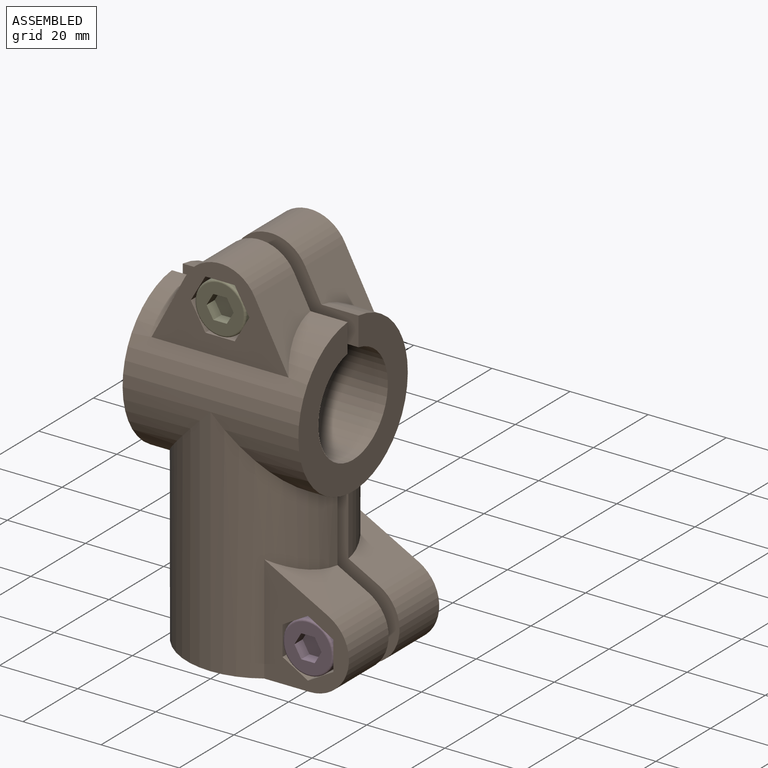
[diagram: assembled view]
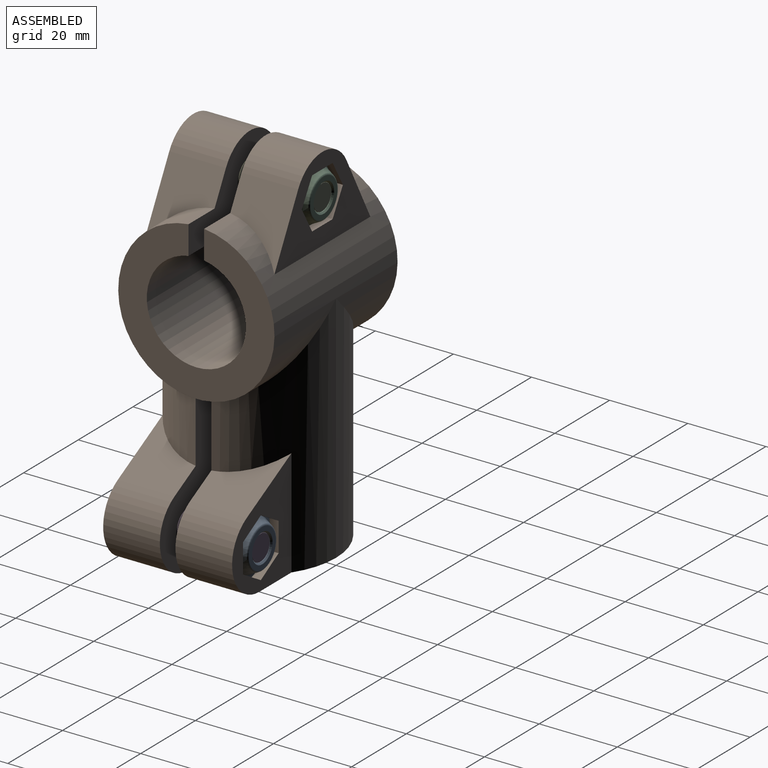
[diagram: assembled view, second angle]
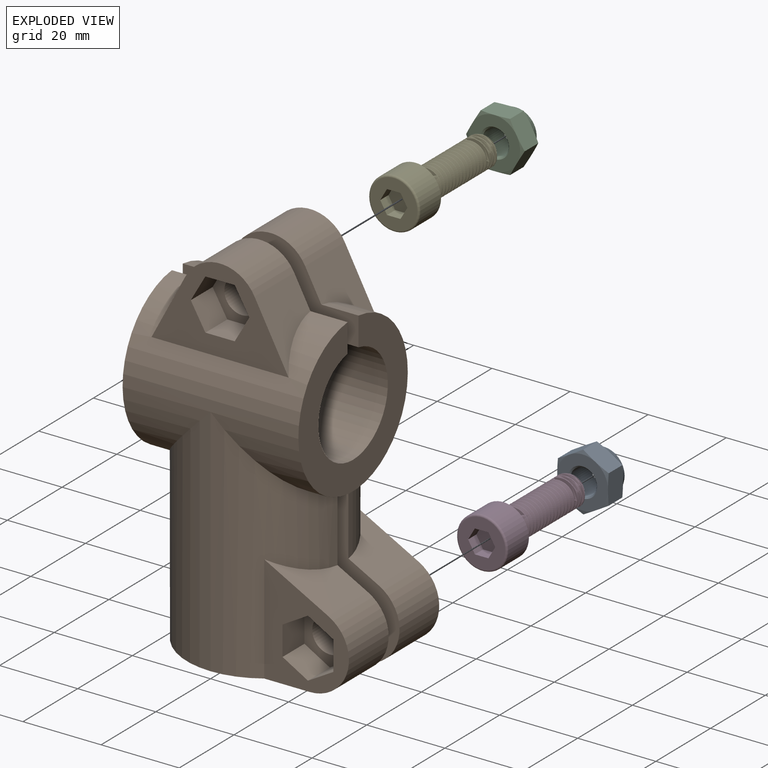
[diagram: exploded view]
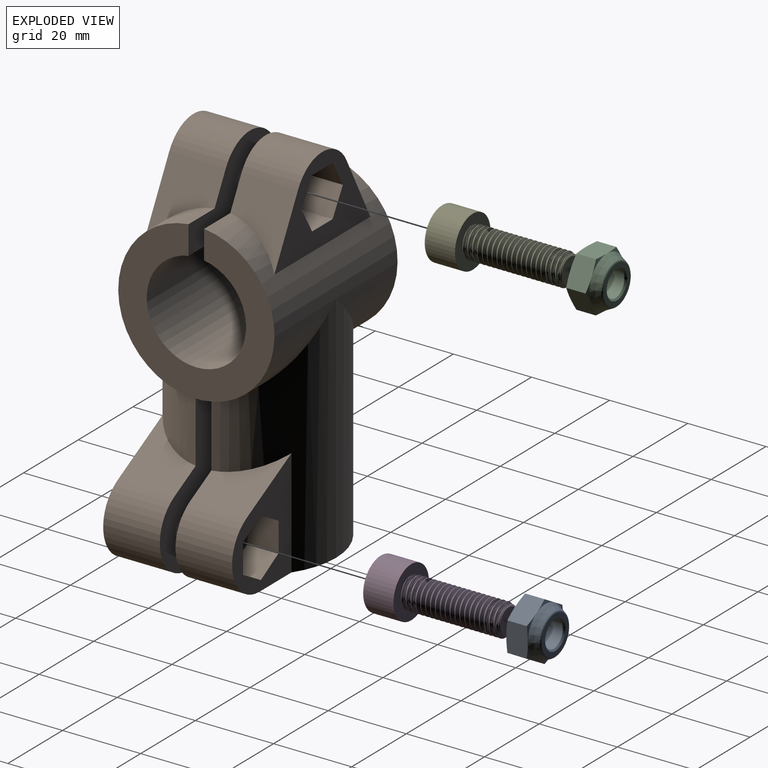
[diagram: exploded view, second angle]
ASSEMBLY  parts=5 mates=4
PART A: 25 faces, bbox 15.6x8.6x15.6 mm
  f0: plane 7.06x6.06mm, normal (-0.5,0,0.87), area 39.9mm2, adj f1,f5,f9,f10,f21,f22
  f1: plane 7.06x6.06mm, normal (0.5,0,0.87), area 39.9mm2, adj f0,f2,f10,f11,f20,f21
  f2: plane 8.07x6.06mm, normal (1,0,0), area 39.9mm2, adj f1,f3,f11,f12,f19,f20
  f3: plane 7.06x6.06mm, normal (0.5,0,-0.87), area 39.9mm2, adj f2,f4,f12,f13,f18,f19
  f4: plane 7.06x6.06mm, normal (-0.5,0,-0.87), area 39.9mm2, adj f3,f5,f13,f14,f17,f18
  f5: plane 8.07x6.06mm, normal (-1,0,0), area 39.9mm2, adj f0,f4,f9,f14,f17,f22
  f6: plane 13x13mm, normal (0,-1,0), area 89.2mm2, adj f17,f18,f19,f20,f21,f22,f24
  f7: plane 9.79x9.79mm, normal (0,1,0), area 31.8mm2, adj f16,f23
  f8: cylinder r=3.32mm len=7.2mm, axis (0,-1,0), area 150.4mm2, adj f23,f24
  f9: cone r=7.51mm half-angle=75deg, axis (0,-1,0), area 3.7mm2, adj f0,f5,f15
  f10: cone r=7.51mm half-angle=75deg, axis (0,-1,0), area 3.7mm2, adj f0,f1,f15
  f11: cone r=7.51mm half-angle=75deg, axis (0,-1,0), area 3.7mm2, adj f1,f2,f15
  f12: cone r=7.51mm half-angle=75deg, axis (0,-1,0), area 3.7mm2, adj f2,f3,f15
  f13: cone r=7.51mm half-angle=75deg, axis (0,-1,0), area 3.7mm2, adj f3,f4,f15
  f14: cone r=7.51mm half-angle=75deg, axis (0,-1,0), area 3.7mm2, adj f4,f5,f15
  f15: cone r=6.5mm half-angle=27.5deg, axis (0,-1,0), area 93.5mm2, adj f9,f10,f11,f12,f13,f14,f16
  f16: torus R=4.9mm, axis (0,-1,0), area 17.6mm2, adj f7,f15
  f17: cone r=6.5mm half-angle=75deg, axis (0,1,0), area 3.7mm2, adj f4,f5,f6
  f18: cone r=6.5mm half-angle=75deg, axis (0,1,0), area 3.7mm2, adj f3,f4,f6
  f19: cone r=6.5mm half-angle=75deg, axis (0,1,0), area 3.7mm2, adj f2,f3,f6
  f20: cone r=6.5mm half-angle=75deg, axis (0,1,0), area 3.7mm2, adj f1,f2,f6
  f21: cone r=6.5mm half-angle=75deg, axis (0,1,0), area 3.7mm2, adj f0,f1,f6
  f22: cone r=6.5mm half-angle=75deg, axis (0,1,0), area 3.7mm2, adj f0,f5,f6
  f23: cone r=3.32mm half-angle=45deg, axis (0,1,0), area 12.5mm2, adj f7,f8
  f24: cone r=3.72mm half-angle=45deg, axis (0,-1,0), area 12.5mm2, adj f6,f8
PART B: 58 faces, bbox 55.5x40x93 mm
  f0: plane 35.08x21.7mm, normal (0,1,0), area 352.7mm2, adj f10,f11,f12,f17,f52,f53,f54,f55
  f1: cylinder r=4.5mm len=9mm, axis (0,-1,0), area 183.8mm2, adj f28,f51
  f2: plane 27.57x21.7mm, normal (0,1,0), area 298.9mm2, adj f15,f16,f20,f21,f45,f46,f47,f48
  f3: cylinder r=4.5mm len=9mm, axis (0,-1,0), area 183.8mm2, adj f26,f44
  f4: cylinder r=4.5mm len=9mm, axis (0,1,0), area 183.8mm2, adj f7,f43
  f5: cylinder r=4.5mm len=9mm, axis (0,1,0), area 183.8mm2, adj f9,f36
  f6: plane 35.08x21.7mm, normal (0,-1,0), area 352.7mm2, adj f17,f22,f23,f24,f37,f38,f39,f40
  f7: plane 45x20.46mm, normal (0,1,0), area 504.2mm2, adj f4,f17,f18,f19,f22,f23,f24,f29
  f8: plane 27.57x21.7mm, normal (0,-1,0), area 298.9mm2, adj f13,f14,f15,f16,f30,f31,f32,f33
  f9: plane 40x20.46mm, normal (0,1,0), area 458.7mm2, adj f5,f13,f14,f15,f16,f25,f27
  f10: plane 16.39x14.5mm, normal (0.88,0,0.47), area 174.6mm2, adj f0,f12,f17,f28
  f11: plane 16.39x14.5mm, normal (-0.88,0,0.47), area 174.6mm2, adj f0,f12,f17,f28
  f12: cylinder r=10mm len=17.66mm, axis (0,1,0), area 313.9mm2, adj f0,f10,f11,f28
  f13: plane 16.4x14.5mm, normal (0.47,0,0.88), area 175mm2, adj f8,f9,f14,f15
  f14: cylinder r=10mm len=18.82mm, axis (0,1,0), area 384.5mm2, adj f8,f9,f13,f16
  f15: cylinder r=20mm len=60mm, axis (0,0,-1), area 4919.6mm2, adj f2,f8,f9,f13,f16,f17,f20,f25
  f16: plane 43x40mm, normal (0,0,-1), area 892.9mm2, adj f2,f8,f9,f14,f15,f21,f26,f27
  f17: cylinder r=20mm len=45mm, axis (-1,0,0), area 2852mm2, adj f0,f6,f7,f10,f11,f15,f18,f19
  f18: plane 40x39.9mm, normal (1,0,0), area 720.7mm2, adj f7,f17,f28,f29
  f19: plane 40x39.9mm, normal (-1,0,0), area 720.7mm2, adj f7,f17,f28,f29
  f20: plane 16.4x14.5mm, normal (0.47,0,0.88), area 175mm2, adj f2,f15,f21,f26
  f21: cylinder r=10mm len=18.82mm, axis (0,1,0), area 384.5mm2, adj f2,f16,f20,f26
  f22: plane 16.39x14.5mm, normal (0.88,0,0.47), area 174.6mm2, adj f6,f7,f17,f24
  f23: plane 16.39x14.5mm, normal (-0.88,0,0.47), area 174.6mm2, adj f6,f7,f17,f24
  f24: cylinder r=10mm len=17.66mm, axis (0,1,0), area 313.9mm2, adj f6,f7,f22,f23
  f25: plane 32.7x25.4mm, normal (0,0,-1), area 536mm2, adj f9,f15,f26,f27
  f26: plane 40x20.46mm, normal (0,-1,0), area 458.7mm2, adj f3,f15,f16,f20,f21,f25,f27
  f27: cylinder r=12.7mm len=40mm, axis (0,0,-1), area 3031.2mm2, adj f9,f16,f25,f26
  f28: plane 45x20.46mm, normal (0,-1,0), area 504.2mm2, adj f1,f10,f11,f12,f17,f18,f19,f29
  f29: cylinder r=12.7mm len=45mm, axis (1,0,0), area 3410.1mm2, adj f7,f18,f19,f28
  f30: plane 8x7.51mm, normal (-1,0,0), area 60mm2, adj f8,f31,f35,f36
  f31: plane 8x6.5mm, normal (-0.5,0,0.87), area 60mm2, adj f8,f30,f32,f36
  f32: plane 8x6.5mm, normal (0.5,0,0.87), area 60mm2, adj f8,f31,f33,f36
  f33: plane 8x7.51mm, normal (1,0,0), area 60mm2, adj f8,f32,f34,f36
  f34: plane 8x6.5mm, normal (0.5,0,-0.87), area 60mm2, adj f8,f33,f35,f36
  f35: plane 8x6.5mm, normal (-0.5,0,-0.87), area 60mm2, adj f8,f30,f34,f36
  f36: plane 15.01x13mm, normal (0,-1,0), area 82.7mm2, adj f5,f30,f31,f32,f33,f34,f35
  f37: plane 8x6.5mm, normal (-0.87,0,0.5), area 60mm2, adj f6,f38,f42,f43
  f38: plane 8x7.51mm, normal (0,0,1), area 60mm2, adj f6,f37,f39,f43
  f39: plane 8x6.5mm, normal (0.87,0,0.5), area 60mm2, adj f6,f38,f40,f43
  f40: plane 8x6.5mm, normal (0.87,0,-0.5), area 60mm2, adj f6,f39,f41,f43
  f41: plane 8x7.51mm, normal (0,0,-1), area 60mm2, adj f6,f40,f42,f43
  f42: plane 8x6.5mm, normal (-0.87,0,-0.5), area 60mm2, adj f6,f37,f41,f43
  f43: plane 15.01x13mm, normal (0,-1,0), area 82.7mm2, adj f4,f37,f38,f39,f40,f41,f42
  f44: plane 15.01x13mm, normal (0,1,0), area 82.7mm2, adj f3,f45,f46,f47,f48,f49,f50
  f45: plane 8x7.51mm, normal (-1,0,0), area 60mm2, adj f2,f44,f46,f50
  f46: plane 8x6.5mm, normal (-0.5,0,-0.87), area 60mm2, adj f2,f44,f45,f47
  f47: plane 8x6.5mm, normal (0.5,0,-0.87), area 60mm2, adj f2,f44,f46,f48
  f48: plane 8x7.51mm, normal (1,0,0), area 60mm2, adj f2,f44,f47,f49
  f49: plane 8x6.5mm, normal (0.5,0,0.87), area 60mm2, adj f2,f44,f48,f50
  f50: plane 8x6.5mm, normal (-0.5,0,0.87), area 60mm2, adj f2,f44,f45,f49
  f51: plane 15.01x13mm, normal (0,1,0), area 82.7mm2, adj f1,f52,f53,f54,f55,f56,f57
  f52: plane 8x6.5mm, normal (-0.87,0,0.5), area 60mm2, adj f0,f51,f53,f57
  f53: plane 8x6.5mm, normal (-0.87,0,-0.5), area 60mm2, adj f0,f51,f52,f54
  f54: plane 8x7.51mm, normal (0,0,-1), area 60mm2, adj f0,f51,f53,f55
  f55: plane 8x6.5mm, normal (0.87,0,-0.5), area 60mm2, adj f0,f51,f54,f56
  f56: plane 8x6.5mm, normal (0.87,0,0.5), area 60mm2, adj f0,f51,f55,f57
  f57: plane 8x7.51mm, normal (0,0,1), area 60mm2, adj f0,f51,f52,f56
PART C: 25 faces, bbox 15.6x8.6x15.6 mm
  f0: plane 7.06x6.06mm, normal (-0.87,0,-0.5), area 39.9mm2, adj f1,f5,f9,f10,f21,f22
  f1: plane 7.06x6.06mm, normal (-0.87,0,0.5), area 39.9mm2, adj f0,f2,f10,f11,f20,f21
  f2: plane 8.07x6.06mm, normal (0,0,1), area 39.9mm2, adj f1,f3,f11,f12,f19,f20
  f3: plane 7.06x6.06mm, normal (0.87,0,0.5), area 39.9mm2, adj f2,f4,f12,f13,f18,f19
  f4: plane 7.06x6.06mm, normal (0.87,0,-0.5), area 39.9mm2, adj f3,f5,f13,f14,f17,f18
  f5: plane 8.07x6.06mm, normal (0,0,-1), area 39.9mm2, adj f0,f4,f9,f14,f17,f22
  f6: plane 13x13mm, normal (0,-1,0), area 89.2mm2, adj f17,f18,f19,f20,f21,f22,f24
  f7: plane 9.79x9.79mm, normal (0,1,0), area 31.8mm2, adj f16,f23
  f8: cylinder r=3.32mm len=7.2mm, axis (0,-1,0), area 150.4mm2, adj f23,f24
  f9: cone r=7.51mm half-angle=75deg, axis (0,-1,0), area 3.7mm2, adj f0,f5,f15
  f10: cone r=7.51mm half-angle=75deg, axis (0,-1,0), area 3.7mm2, adj f0,f1,f15
  f11: cone r=7.51mm half-angle=75deg, axis (0,-1,0), area 3.7mm2, adj f1,f2,f15
  f12: cone r=7.51mm half-angle=75deg, axis (0,-1,0), area 3.7mm2, adj f2,f3,f15
  f13: cone r=7.51mm half-angle=75deg, axis (0,-1,0), area 3.7mm2, adj f3,f4,f15
  f14: cone r=7.51mm half-angle=75deg, axis (0,-1,0), area 3.7mm2, adj f4,f5,f15
  f15: cone r=6.5mm half-angle=27.5deg, axis (0,-1,0), area 93.5mm2, adj f9,f10,f11,f12,f13,f14,f16
  f16: torus R=4.9mm, axis (0,-1,0), area 17.6mm2, adj f7,f15
  f17: cone r=6.5mm half-angle=75deg, axis (0,1,0), area 3.7mm2, adj f4,f5,f6
  f18: cone r=6.5mm half-angle=75deg, axis (0,1,0), area 3.7mm2, adj f3,f4,f6
  f19: cone r=6.5mm half-angle=75deg, axis (0,1,0), area 3.7mm2, adj f2,f3,f6
  f20: cone r=6.5mm half-angle=75deg, axis (0,1,0), area 3.7mm2, adj f1,f2,f6
  f21: cone r=6.5mm half-angle=75deg, axis (0,1,0), area 3.7mm2, adj f0,f1,f6
  f22: cone r=6.5mm half-angle=75deg, axis (0,1,0), area 3.7mm2, adj f0,f5,f6
  f23: cone r=3.32mm half-angle=45deg, axis (0,1,0), area 12.5mm2, adj f7,f8
  f24: cone r=3.72mm half-angle=45deg, axis (0,-1,0), area 12.5mm2, adj f6,f8
PART D: 17 faces, bbox 14.1x33.7x14.1 mm
  f0: plane 6.47x6.44mm, normal (0,1,0), area 32.7mm2, adj f1,f3,f4,f5
  f1: cone r=4mm half-angle=45deg, axis (0,-1,0), area 11.5mm2, adj f0,f2,f4,f5
  f2: cylinder r=4mm len=24.23mm, axis (0,-1,0), area 76.7mm2, adj f1,f4,f5,f8
  f3: cylinder r=3.19mm len=25mm, axis (0,1,0), area 62.2mm2, adj f0,f4,f5,f8
  f4: bspline ~25.66x8.14mm, area 416.5mm2, adj f0,f1,f2,f3,f8
  f5: bspline ~26.29x8.14mm, area 418.5mm2, adj f0,f1,f2,f3,f8
  f6: cylinder r=6.5mm len=13mm, axis (0,1,0), area 306.3mm2, adj f8,f16
  f7: plane 12x12mm, normal (0,-1,0), area 81.9mm2, adj f9,f10,f11,f12,f13,f14,f16
  f8: plane 13x13mm, normal (0,1,0), area 91.9mm2, adj f2,f3,f4,f5,f6
  f9: plane 3x3mm, normal (0.87,0,-0.5), area 10.4mm2, adj f7,f10,f14,f15
  f10: plane 3.46x3mm, normal (0,0,-1), area 10.4mm2, adj f7,f9,f11,f15
  f11: plane 3x3mm, normal (-0.87,0,-0.5), area 10.4mm2, adj f7,f10,f12,f15
  f12: plane 3x3mm, normal (-0.87,0,0.5), area 10.4mm2, adj f7,f11,f13,f15
  f13: plane 3.46x3mm, normal (0,0,1), area 10.4mm2, adj f7,f12,f14,f15
  f14: plane 3x3mm, normal (0.87,0,0.5), area 10.4mm2, adj f7,f9,f13,f15
  f15: plane 6.93x6mm, normal (0,-1,0), area 31.2mm2, adj f9,f10,f11,f12,f13,f14
  f16: torus R=6mm, axis (0,-1,0), area 31.2mm2, adj f6,f7
PART E: 17 faces, bbox 14.1x33.7x14.1 mm
  f0: plane 6.47x6.44mm, normal (0,1,0), area 32.7mm2, adj f1,f3,f4,f5
  f1: cone r=4mm half-angle=45deg, axis (0,-1,0), area 11.5mm2, adj f0,f2,f4,f5
  f2: cylinder r=4mm len=24.23mm, axis (0,-1,0), area 76.7mm2, adj f1,f4,f5,f8
  f3: cylinder r=3.19mm len=25mm, axis (0,1,0), area 62.2mm2, adj f0,f4,f5,f8
  f4: bspline ~25.66x8.14mm, area 416.5mm2, adj f0,f1,f2,f3,f8
  f5: bspline ~26.29x8.14mm, area 418.5mm2, adj f0,f1,f2,f3,f8
  f6: cylinder r=6.5mm len=13mm, axis (0,1,0), area 306.3mm2, adj f8,f16
  f7: plane 12x12mm, normal (0,-1,0), area 81.9mm2, adj f9,f10,f11,f12,f13,f14,f16
  f8: plane 13x13mm, normal (0,1,0), area 91.9mm2, adj f2,f3,f4,f5,f6
  f9: plane 3x3mm, normal (0.87,0,-0.5), area 10.4mm2, adj f7,f10,f14,f15
  f10: plane 3.46x3mm, normal (0,0,-1), area 10.4mm2, adj f7,f9,f11,f15
  f11: plane 3x3mm, normal (-0.87,0,-0.5), area 10.4mm2, adj f7,f10,f12,f15
  f12: plane 3x3mm, normal (-0.87,0,0.5), area 10.4mm2, adj f7,f11,f13,f15
  f13: plane 3.46x3mm, normal (0,0,1), area 10.4mm2, adj f7,f12,f14,f15
  f14: plane 3x3mm, normal (0.87,0,0.5), area 10.4mm2, adj f7,f9,f13,f15
  f15: plane 6.93x6mm, normal (0,-1,0), area 31.2mm2, adj f9,f10,f11,f12,f13,f14
  f16: torus R=6mm, axis (0,-1,0), area 31.2mm2, adj f6,f7
PLACE A t=(0,0.4,60.01)mm
PLACE B t=(0,0,60)mm
PLACE C t=(0,0.4,60)mm
PLACE D t=(0,0,60)mm
PLACE E t=(0,0,60)mm
MATE fastened A.f8 <-> D.f0  axis (0,-1,0) through (22.5,16.5,10.01)mm
MATE fastened B.f1 <-> E.f1  axis (0,1,0) through (0,-8.5,82.5)mm
MATE fastened B.f3 <-> D.f1  axis (0,1,0) through (22.5,-8.5,10)mm
MATE fastened C.f8 <-> E.f3  axis (0,-1,0) through (0,16.5,82.5)mm
